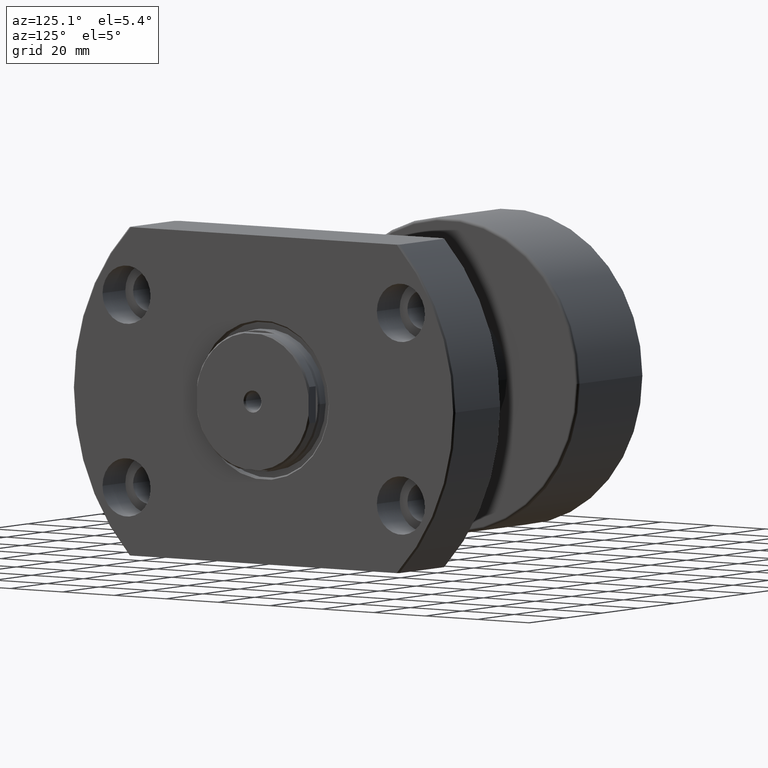
[diagram: clean part render]
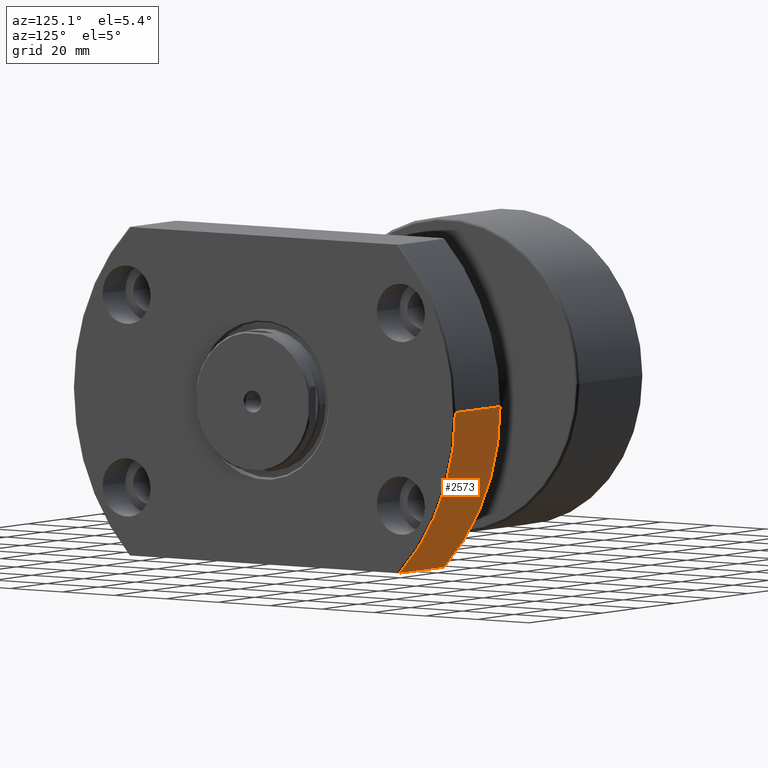
[diagram: same view with one face highlighted and labeled with its STEP entity id]
A machine part, auxiliary view. The second image highlights one B-rep face of the part: STEP entity #2573.
In plain terms, the highlighted cylindrical surface (partial cylindrical patch) has radius 73.5 mm, axis along (1, 0, 0).
Its self-contained STEP definition (entity closure, byte-faithful):
#36 = DIRECTION ( 'NONE',  ( 1.000000000000000000, 5.504030557965630938E-17, -0.000000000000000000 ) ) ;
#56 = FACE_OUTER_BOUND ( 'NONE', #1263, .T. ) ;
#132 = CARTESIAN_POINT ( 'NONE',  ( 44.00000000000007816, 73.49999999999991473, 0.000000000000000000 ) ) ;
#216 = VERTEX_POINT ( 'NONE', #3003 ) ;
#304 = VERTEX_POINT ( 'NONE', #2550 ) ;
#310 = CARTESIAN_POINT ( 'NONE',  ( -6.175615574477433256E-13, 51.94468211472779018, -52.00000000000000711 ) ) ;
#366 = EDGE_CURVE ( 'NONE', #216, #304, #964, .T. ) ;
#411 = VECTOR ( 'NONE', #36, 1000.000000000000000 ) ;
#491 = ORIENTED_EDGE ( 'NONE', *, *, #366, .T. ) ;
#616 = CIRCLE ( 'NONE', #3000, 73.49999999999991473 ) ;
#705 = DIRECTION ( 'NONE',  ( 1.000000000000000000, 5.504030557965630938E-17, -0.000000000000000000 ) ) ;
#788 = CYLINDRICAL_SURFACE ( 'NONE', #3064, 73.49999999999991473 ) ;
#964 = CIRCLE ( 'NONE', #1077, 73.49999999999991473 ) ;
#1077 = AXIS2_PLACEMENT_3D ( 'NONE', #2916, #705, #1971 ) ;
#1172 = VERTEX_POINT ( 'NONE', #132 ) ;
#1221 = DIRECTION ( 'NONE',  ( -9.440671978105083104E-17, 1.000000000000000000, 0.000000000000000000 ) ) ;
#1263 = EDGE_LOOP ( 'NONE', ( #491, #1885, #2304, #2682 ) ) ;
#1382 = CARTESIAN_POINT ( 'NONE',  ( 44.00000000000008527, 2.421773445504882888E-15, 0.000000000000000000 ) ) ;
#1467 = CARTESIAN_POINT ( 'NONE',  ( 44.49999999999999289, 73.49999999999991473, 0.000000000000000000 ) ) ;
#1861 = DIRECTION ( 'NONE',  ( 1.000000000000000000, -2.886466111666351885E-14, -0.000000000000000000 ) ) ;
#1885 = ORIENTED_EDGE ( 'NONE', *, *, #3020, .T. ) ;
#1886 = DIRECTION ( 'NONE',  ( 1.000000000000000000, 5.504030557965630938E-17, -0.000000000000000000 ) ) ;
#1971 = DIRECTION ( 'NONE',  ( -4.720335989052541552E-17, 1.000000000000000000, 0.000000000000000000 ) ) ;
#2187 = CARTESIAN_POINT ( 'NONE',  ( 44.50000000000000000, 2.449293598294705724E-15, 0.000000000000000000 ) ) ;
#2241 = VERTEX_POINT ( 'NONE', #2759 ) ;
#2304 = ORIENTED_EDGE ( 'NONE', *, *, #2460, .F. ) ;
#2460 = EDGE_CURVE ( 'NONE', #2241, #1172, #616, .T. ) ;
#2550 = CARTESIAN_POINT ( 'NONE',  ( 19.49999999999999289, 73.49999999999991473, 0.000000000000000000 ) ) ;
#2573 = ADVANCED_FACE ( 'NONE', ( #56 ), #788, .T. ) ;
#2591 = LINE ( 'NONE', #310, #3172 ) ;
#2632 = DIRECTION ( 'NONE',  ( -9.440671978105083104E-17, 1.000000000000000000, 0.000000000000000000 ) ) ;
#2682 = ORIENTED_EDGE ( 'NONE', *, *, #3225, .F. ) ;
#2751 = LINE ( 'NONE', #1467, #411 ) ;
#2759 = CARTESIAN_POINT ( 'NONE',  ( 44.00000000000007816, 51.94468211472651831, -52.00000000000000711 ) ) ;
#2908 = DIRECTION ( 'NONE',  ( 1.000000000000000000, 5.504030557965630938E-17, -0.000000000000000000 ) ) ;
#2916 = CARTESIAN_POINT ( 'NONE',  ( 19.49999999999999645, 1.073285958803297879E-15, 0.000000000000000000 ) ) ;
#3000 = AXIS2_PLACEMENT_3D ( 'NONE', #1382, #1886, #2632 ) ;
#3003 = CARTESIAN_POINT ( 'NONE',  ( 19.49999999999999289, 51.94468211472722885, -52.00000000000000711 ) ) ;
#3020 = EDGE_CURVE ( 'NONE', #304, #1172, #2751, .T. ) ;
#3064 = AXIS2_PLACEMENT_3D ( 'NONE', #2187, #2908, #1221 ) ;
#3172 = VECTOR ( 'NONE', #1861, 1000.000000000000000 ) ;
#3225 = EDGE_CURVE ( 'NONE', #216, #2241, #2591, .T. ) ;